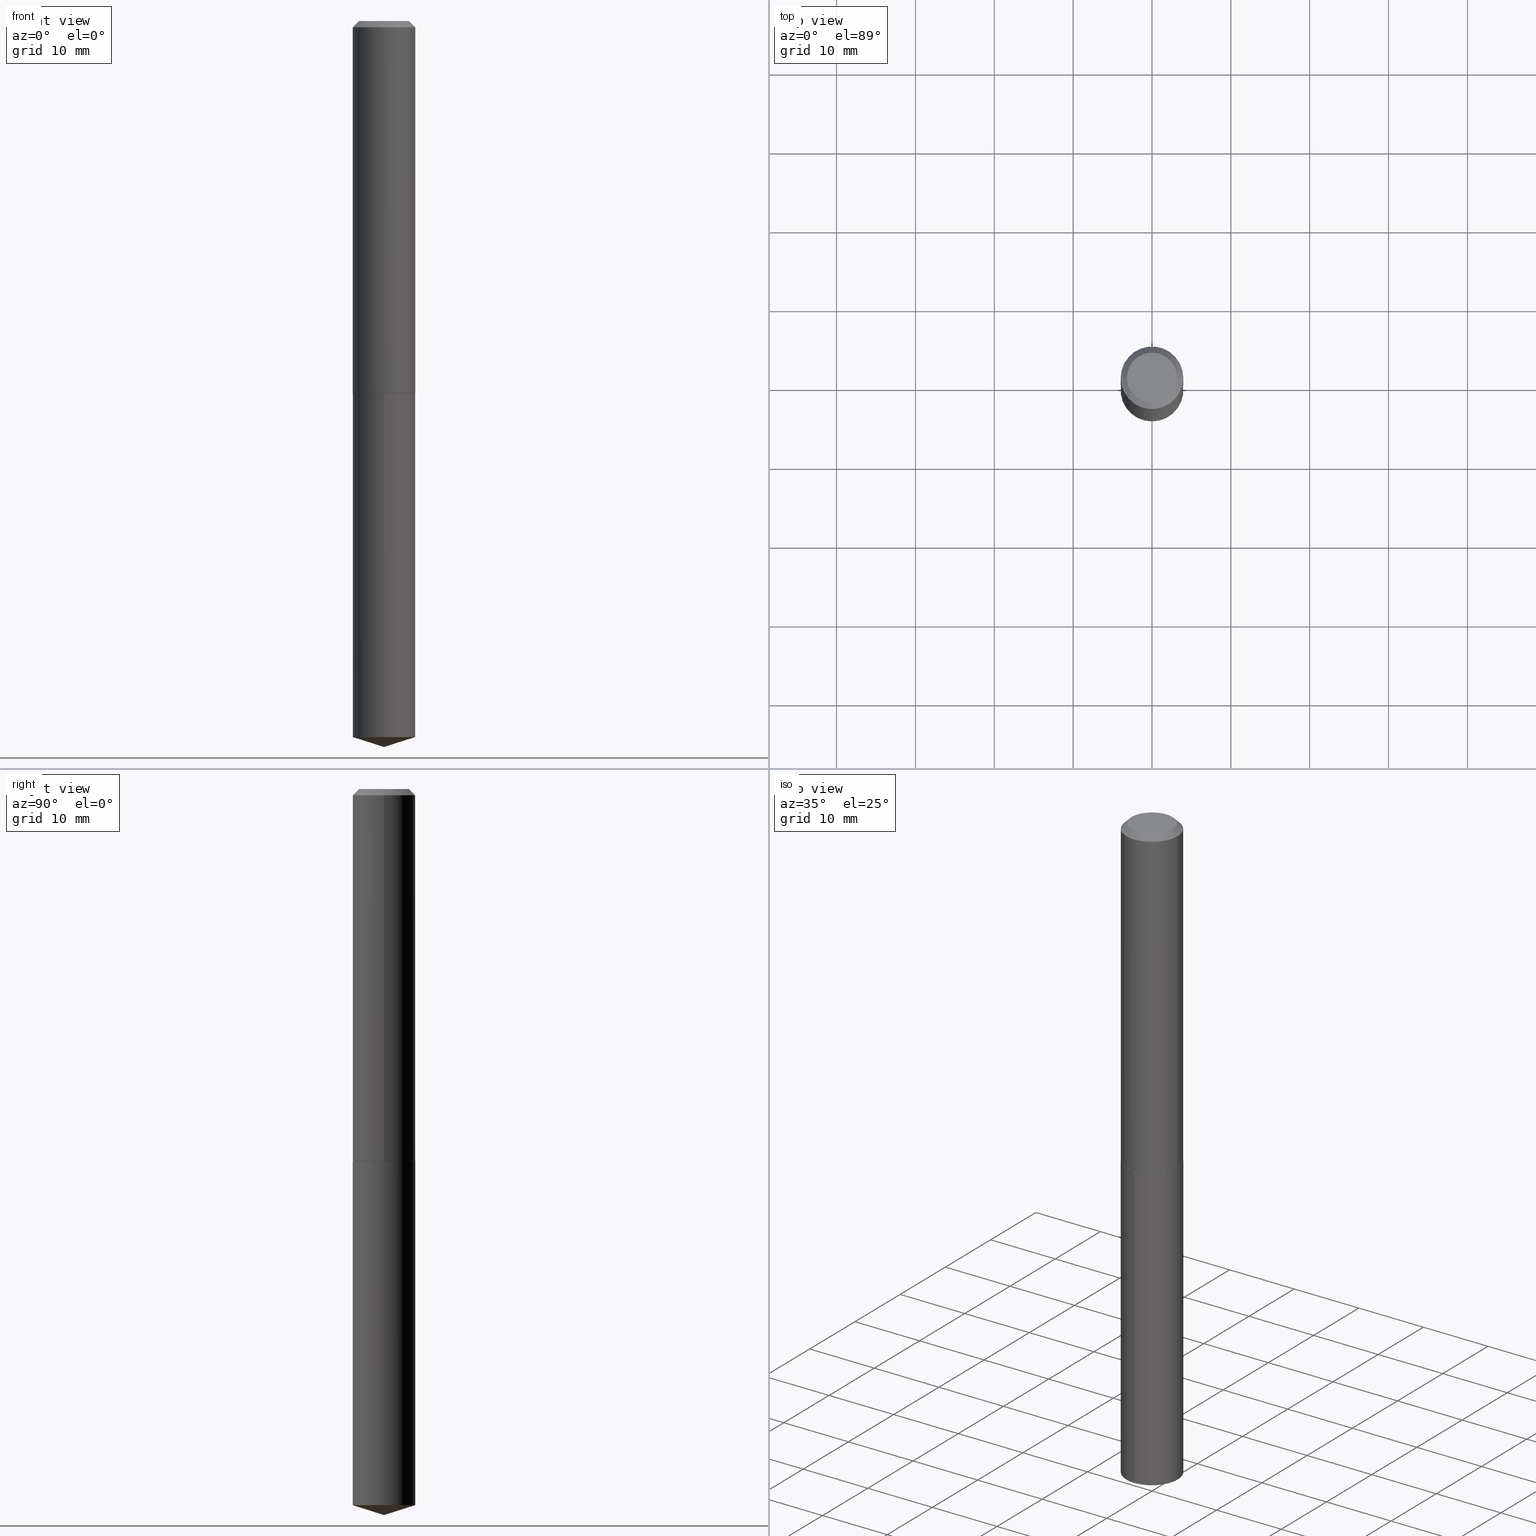
[diagram: canonical four-view strip — front | top / right | iso, engineering-drawing reading convention]
A machine part, canonical four-view strip (front | top / right | iso — engineering-drawing reading convention). The complete STEP part file that produces these views, byte-faithful:
ISO-10303-21;
HEADER;
FILE_DESCRIPTION (( 'STEP AP203' ),
    '1' );
FILE_NAME ('51517.STEP',
    '2024-04-22T18:46:47',
    ( '' ),
    ( '' ),
    'SwSTEP 2.0',
    'SolidWorks 2023',
    '' );
FILE_SCHEMA (( 'CONFIG_CONTROL_DESIGN' ));
ENDSEC;

DATA;
#1 = FACE_OUTER_BOUND ( 'NONE', #309, .T. ) ;
#2 = ORIENTED_EDGE ( 'NONE', *, *, #217, .F. ) ;
#3 = VERTEX_POINT ( 'NONE', #53 ) ;
#4 = DIRECTION ( 'NONE',  ( -2.438279987139125498E-29, 3.501776136879202935E-15, 1.000000000000000000 ) ) ;
#5 = DIRECTION ( 'NONE',  ( -2.445468806185136877E-29, 3.491481338843145188E-15, 1.000000000000000000 ) ) ;
#6 = AXIS2_PLACEMENT_3D ( 'NONE', #27, #328, #242 ) ;
#7 = PLANE ( 'NONE',  #166 ) ;
#8 = DIRECTION ( 'NONE',  ( 1.000000000000000000, -6.982962677686268288E-15, 0.000000000000000000 ) ) ;
#9 = PERSON_AND_ORGANIZATION ( #11, #129 ) ;
#10 = DIRECTION ( 'NONE',  ( -2.445468806185136597E-29, 3.491481338843145583E-15, 1.000000000000000000 ) ) ;
#11 = PERSON ( 'UNSPECIFIED', 'UNSPECIFIED', 'UNSPECIFIED', ('UNSPECIFIED'), ('UNSPECIFIED'), ('UNSPECIFIED') ) ;
#12 = APPLICATION_PROTOCOL_DEFINITION ( 'international standard', 'config_control_design', 1994, #123 ) ;
#13 = EDGE_LOOP ( 'NONE', ( #212, #224, #315, #236 ) ) ;
#14 = CALENDAR_DATE ( 2024, 22, 4 ) ;
#15 = DATE_AND_TIME ( #14, #23 ) ;
#16 = EDGE_CURVE ( 'NONE', #222, #3, #209, .T. ) ;
#17 = ORIENTED_EDGE ( 'NONE', *, *, #172, .T. ) ;
#18 = AXIS2_PLACEMENT_3D ( 'NONE', #388, #179, #333 ) ;
#19 = PERSON_AND_ORGANIZATION ( #11, #129 ) ;
#20 = DIRECTION ( 'NONE',  ( -2.438279987139125779E-29, 3.501776136879202935E-15, 1.000000000000000000 ) ) ;
#21 = DIRECTION ( 'NONE',  ( 2.438088387897960049E-29, -3.491481338843145188E-15, -1.000000000000000000 ) ) ;
#22 = ADVANCED_FACE ( 'NONE', ( #153 ), #46, .T. ) ;
#23 = LOCAL_TIME ( 14, 46, 47.00000000000000000, #223 ) ;
#24 = LINE ( 'NONE', #156, #139 ) ;
#25 = DIRECTION ( 'NONE',  ( -2.438279987139125779E-29, 3.501776136879202935E-15, 1.000000000000000000 ) ) ;
#26 = VERTEX_POINT ( 'NONE', #180 ) ;
#27 = CARTESIAN_POINT ( 'NONE',  ( 4.547104698220642215E-29, -6.492060401444944640E-15, -1.859399999999999942 ) ) ;
#28 = CARTESIAN_POINT ( 'NONE',  ( 4.547104698220642775E-29, -6.492060401444945429E-15, -1.859400000000000164 ) ) ;
#29 = DIRECTION ( 'NONE',  ( -6.659769872151623411E-15, -0.9537169507482254893, 0.3007057995042773935 ) ) ;
#30 = FACE_OUTER_BOUND ( 'NONE', #286, .T. ) ;
#31 = CC_DESIGN_DATE_AND_TIME_ASSIGNMENT ( #15, #137, ( #237 ) ) ;
#32 = CIRCLE ( 'NONE', #306, 0.1562500000000000000 ) ;
#33 = DATE_AND_TIME ( #203, #280 ) ;
#34 = DIRECTION ( 'NONE',  ( 6.776566513254248671E-15, 0.9537169507482275987, 0.3007057995042707876 ) ) ;
#35 = CARTESIAN_POINT ( 'NONE',  ( 1.110223024625243907E-15, 0.1562499999999875100, -3.575734564237659452 ) ) ;
#36 = APPLICATION_PROTOCOL_DEFINITION ( 'international standard', 'config_control_design', 1994, #301 ) ;
#37 = ADVANCED_FACE ( 'NONE', ( #30 ), #206, .T. ) ;
#38 = CARTESIAN_POINT ( 'NONE',  ( 7.642090019328607041E-31, -1.091087918388490883E-16, -0.03125000000000022898 ) ) ;
#39 = AXIS2_PLACEMENT_3D ( 'NONE', #157, #25, #302 ) ;
#40 = CIRCLE ( 'NONE', #263, 0.1562500000000000278 ) ;
#41 = ORIENTED_EDGE ( 'NONE', *, *, #138, .T. ) ;
#42 = CARTESIAN_POINT ( 'NONE',  ( 8.732008917436479290E-29, -1.250227982139334463E-14, -3.575734564237659008 ) ) ;
#43 = EDGE_CURVE ( 'NONE', #221, #296, #367, .T. ) ;
#44 = APPROVAL_ROLE ( '' ) ;
#45 = DIRECTION ( 'NONE',  ( -6.982962677686265133E-15, -1.000000000000000000, 3.496765431890256920E-15 ) ) ;
#46 = CONICAL_SURFACE ( 'NONE', #72, 0.1562500000000001665, 0.7853981633978922572 ) ;
#47 = PRODUCT_DEFINITION_FORMATION_WITH_SPECIFIED_SOURCE ( 'ANY', '', #81, .NOT_KNOWN. ) ;
#48 = ORIENTED_EDGE ( 'NONE', *, *, #138, .F. ) ;
#49 = UNCERTAINTY_MEASURE_WITH_UNIT (LENGTH_MEASURE( 1.000000000000000082E-05 ), #133, 'distance_accuracy_value', 'NONE');
#50 = CARTESIAN_POINT ( 'NONE',  ( 8.732008917436479290E-29, -1.250227982139334463E-14, -3.575734564237659008 ) ) ;
#51 = LINE ( 'NONE', #178, #228 ) ;
#52 = CARTESIAN_POINT ( 'NONE',  ( -1.091087918388433617E-15, -0.1562500000000064948, -1.859399999999999498 ) ) ;
#53 = CARTESIAN_POINT ( 'NONE',  ( 0.1250000000000000000, -1.019311926856046176E-15, 3.827021247342097808E-18 ) ) ;
#54 = ORIENTED_EDGE ( 'NONE', *, *, #283, .F. ) ;
#55 = VECTOR ( 'NONE', #29, 39.37007874015748854 ) ;
#56 = CARTESIAN_POINT ( 'NONE',  ( 1.110223024625201703E-15, 0.1562499999999935052, -1.859400000000000608 ) ) ;
#57 = CARTESIAN_POINT ( 'NONE',  ( -0.1562500000000000833, 1.110223024625157132E-15, -7.685836078523293962E-30 ) ) ;
#58 = EDGE_CURVE ( 'NONE', #361, #221, #332, .T. ) ;
#59 = DIRECTION ( 'NONE',  ( -2.438279987139125779E-29, 3.501776136879202935E-15, 1.000000000000000000 ) ) ;
#60 = DIRECTION ( 'NONE',  ( -2.445468806185136597E-29, 3.491481338843145583E-15, 1.000000000000000000 ) ) ;
#61 = EDGE_CURVE ( 'NONE', #342, #376, #270, .T. ) ;
#62 = DIRECTION ( 'NONE',  ( -6.982962677686266711E-15, -1.000000000000000000, 3.500519750498750186E-15 ) ) ;
#63 = ORIENTED_EDGE ( 'NONE', *, *, #61, .F. ) ;
#64 = VECTOR ( 'NONE', #4, 39.37007874015748143 ) ;
#65 = DIRECTION ( 'NONE',  ( 1.000000000000000000, -6.982962677686268288E-15, 0.000000000000000000 ) ) ;
#66 = DIRECTION ( 'NONE',  ( 0.7071067811868614328, -2.468850131085545033E-15, 0.7071067811862336017 ) ) ;
#67 = PERSON_AND_ORGANIZATION_ROLE ( 'design_owner' ) ;
#68 = ORIENTED_EDGE ( 'NONE', *, *, #114, .F. ) ;
#69 = PRODUCT_RELATED_PRODUCT_CATEGORY ( 'detail', '', ( #81 ) ) ;
#70 = DIRECTION ( 'NONE',  ( -6.982962677686266711E-15, -1.000000000000000000, 3.496765431890256131E-15 ) ) ;
#71 = MECHANICAL_CONTEXT ( 'NONE', #123, 'mechanical' ) ;
#72 = AXIS2_PLACEMENT_3D ( 'NONE', #188, #243, #365 ) ;
#73 = CC_DESIGN_APPROVAL ( #181, ( #237 ) ) ;
#74 = CARTESIAN_POINT ( 'NONE',  ( 4.547104698220642775E-29, -6.492060401444945429E-15, -1.859400000000000164 ) ) ;
#75 = SECURITY_CLASSIFICATION_LEVEL ( 'unclassified' ) ;
#76 = APPROVAL_PERSON_ORGANIZATION ( #9, #109, #379 ) ;
#77 = COORDINATED_UNIVERSAL_TIME_OFFSET ( 5, 0, .BEHIND. ) ;
#78 = DIRECTION ( 'NONE',  ( 2.445468806185136597E-29, -3.491481338843145583E-15, -1.000000000000000000 ) ) ;
#79 = EDGE_CURVE ( 'NONE', #121, #358, #334, .T. ) ;
#80 = SHAPE_DEFINITION_REPRESENTATION ( #127, #216 ) ;
#81 = PRODUCT ( '51517', '51517', '', ( #71 ) ) ;
#82 = AXIS2_PLACEMENT_3D ( 'NONE', #337, #304, #373 ) ;
#83 = FACE_OUTER_BOUND ( 'NONE', #273, .T. ) ;
#84 = CARTESIAN_POINT ( 'NONE',  ( -0.1250000000000000000, 9.274247306302067059E-16, 3.827021247329187915E-18 ) ) ;
#85 = DIRECTION ( 'NONE',  ( -2.438279987139125498E-29, 3.501776136879202935E-15, 1.000000000000000000 ) ) ;
#86 = AXIS2_PLACEMENT_3D ( 'NONE', #299, #253, #176 ) ;
#87 = CIRCLE ( 'NONE', #380, 0.1250000000000000000 ) ;
#88 = LOCAL_TIME ( 14, 46, 47.00000000000000000, #77 ) ;
#89 = CYLINDRICAL_SURFACE ( 'NONE', #110, 0.1562500000000000833 ) ;
#90 = CYLINDRICAL_SURFACE ( 'NONE', #269, 0.1562500000000000000 ) ;
#91 = ADVANCED_FACE ( 'NONE', ( #161 ), #90, .T. ) ;
#92 = LINE ( 'NONE', #125, #55 ) ;
#93 = DIRECTION ( 'NONE',  ( -2.445468806185136597E-29, 3.491481338843145583E-15, 1.000000000000000000 ) ) ;
#94 = ORIENTED_EDGE ( 'NONE', *, *, #217, .T. ) ;
#95 = APPROVAL_ROLE ( '' ) ;
#96 = CARTESIAN_POINT ( 'NONE',  ( 8.865733157343894640E-29, -1.265565420125062349E-14, -3.625000000000000444 ) ) ;
#97 = CARTESIAN_POINT ( 'NONE',  ( -0.1562500000000001665, -5.380091636150366596E-15, -1.858900000000000219 ) ) ;
#98 = EDGE_CURVE ( 'NONE', #163, #121, #289, .T. ) ;
#99 = ORIENTED_EDGE ( 'NONE', *, *, #310, .F. ) ;
#100 = ORIENTED_EDGE ( 'NONE', *, *, #61, .T. ) ;
#101 =( NAMED_UNIT ( * ) SI_UNIT ( $, .STERADIAN. ) SOLID_ANGLE_UNIT ( ) );
#102 = ADVANCED_FACE ( 'NONE', ( #389 ), #320, .T. ) ;
#103 = DIRECTION ( 'NONE',  ( -2.438279987139125779E-29, 3.501776136879202935E-15, 1.000000000000000000 ) ) ;
#104 = VECTOR ( 'NONE', #85, 39.37007874015748143 ) ;
#105 = AXIS2_PLACEMENT_3D ( 'NONE', #116, #196, #65 ) ;
#106 = DIRECTION ( 'NONE',  ( -1.000000000000000000, 6.982962677686266711E-15, 0.000000000000000000 ) ) ;
#107 = ORIENTED_EDGE ( 'NONE', *, *, #58, .T. ) ;
#108 = APPROVAL_STATUS ( 'not_yet_approved' ) ;
#109 = APPROVAL ( #257, 'UNSPECIFIED' ) ;
#110 = AXIS2_PLACEMENT_3D ( 'NONE', #119, #303, #234 ) ;
#111 = CC_DESIGN_SECURITY_CLASSIFICATION ( #385, ( #47 ) ) ;
#112 = MANIFOLD_SOLID_BREP ( 'Body-Move/Copy2[1]', #225 ) ;
#113 = DIMENSIONAL_EXPONENTS ( 1.000000000000000000, 0.000000000000000000, 0.000000000000000000, 0.000000000000000000, 0.000000000000000000, 0.000000000000000000, 0.000000000000000000 ) ;
#114 = EDGE_CURVE ( 'NONE', #3, #222, #87, .T. ) ;
#115 = EDGE_LOOP ( 'NONE', ( #219, #107, #255, #2 ) ) ;
#116 = CARTESIAN_POINT ( 'NONE',  ( 7.642090019328607041E-31, -1.091087918388490883E-16, -0.03125000000000022898 ) ) ;
#117 = AXIS2_PLACEMENT_3D ( 'NONE', #240, #277, #8 ) ;
#118 = ORIENTED_EDGE ( 'NONE', *, *, #264, .T. ) ;
#119 = CARTESIAN_POINT ( 'NONE',  ( 0.000000000000000000, 0.000000000000000000, 0.000000000000000000 ) ) ;
#120 = CARTESIAN_POINT ( 'NONE',  ( 4.547104698220642775E-29, -6.492060401444945429E-15, -1.859400000000000164 ) ) ;
#121 = VERTEX_POINT ( 'NONE', #250 ) ;
#122 = DIRECTION ( 'NONE',  ( 0.7071067811865450192, -7.319954787623246579E-15, -0.7071067811865500152 ) ) ;
#123 = APPLICATION_CONTEXT ( 'configuration controlled 3d designs of mechanical parts and assemblies' ) ;
#124 = ORIENTED_EDGE ( 'NONE', *, *, #264, .F. ) ;
#125 = CARTESIAN_POINT ( 'NONE',  ( 8.838764953379332664E-29, -1.269393849618711340E-14, -3.625000000000000444 ) ) ;
#126 = DIRECTION ( 'NONE',  ( -6.982962677686265133E-15, -1.000000000000000000, 3.496765431890256920E-15 ) ) ;
#127 = PRODUCT_DEFINITION_SHAPE ( 'NONE', 'NONE',  #237 ) ;
#128 = CIRCLE ( 'NONE', #279, 0.1562500000000000000 ) ;
#129 = ORGANIZATION ( 'UNSPECIFIED', 'UNSPECIFIED', '' ) ;
#130 = CARTESIAN_POINT ( 'NONE',  ( -0.1562500000000000000, -2.189488701682029578E-15, -0.03125000000000022898 ) ) ;
#131 = CARTESIAN_POINT ( 'NONE',  ( -9.358861080966655793E-47, 1.336197326842805586E-32, 3.827021247335482624E-18 ) ) ;
#132 = DIRECTION ( 'NONE',  ( 1.000000000000000000, -6.982962677686266711E-15, 4.876242311950517246E-29 ) ) ;
#133 =( CONVERSION_BASED_UNIT ( 'INCH', #307 ) LENGTH_UNIT ( ) NAMED_UNIT ( #113 ) );
#134 = ORIENTED_EDGE ( 'NONE', *, *, #310, .T. ) ;
#135 = CIRCLE ( 'NONE', #6, 0.1557500000000001106 ) ;
#136 = DIRECTION ( 'NONE',  ( 0.000000000000000000, 0.000000000000000000, 1.000000000000000000 ) ) ;
#137 = DATE_TIME_ROLE ( 'creation_date' ) ;
#138 = EDGE_CURVE ( 'NONE', #323, #26, #32, .T. ) ;
#139 = VECTOR ( 'NONE', #241, 39.37007874015748143 ) ;
#140 = LOCAL_TIME ( 14, 46, 47.00000000000000000, #170 ) ;
#141 = EDGE_CURVE ( 'NONE', #361, #358, #359, .T. ) ;
#142 = APPROVAL_DATE_TIME ( #145, #169 ) ;
#143 = CC_DESIGN_PERSON_AND_ORGANIZATION_ASSIGNMENT ( #160, #67, ( #81 ) ) ;
#144 = DIRECTION ( 'NONE',  ( -6.982962677686265133E-15, -1.000000000000000000, 3.496765431890256920E-15 ) ) ;
#145 = DATE_AND_TIME ( #322, #140 ) ;
#146 = CC_DESIGN_PERSON_AND_ORGANIZATION_ASSIGNMENT ( #198, #287, ( #237 ) ) ;
#147 = CARTESIAN_POINT ( 'NONE',  ( 4.547104698220642775E-29, -6.492060401444945429E-15, -1.859400000000000164 ) ) ;
#148 = LINE ( 'NONE', #274, #341 ) ;
#149 = ORIENTED_EDGE ( 'NONE', *, *, #371, .F. ) ;
#150 = ORIENTED_EDGE ( 'NONE', *, *, #43, .T. ) ;
#151 = ORIENTED_EDGE ( 'NONE', *, *, #114, .T. ) ;
#152 = CARTESIAN_POINT ( 'NONE',  ( 4.547104698220642775E-29, -6.492060401444945429E-15, -1.859400000000000164 ) ) ;
#153 = FACE_OUTER_BOUND ( 'NONE', #194, .T. ) ;
#154 = EDGE_LOOP ( 'NONE', ( #99, #390, #370, #150 ) ) ;
#155 = EDGE_CURVE ( 'NONE', #376, #345, #174, .T. ) ;
#156 = CARTESIAN_POINT ( 'NONE',  ( -0.1562500000000001665, -5.380091636150366596E-15, -1.858900000000000219 ) ) ;
#157 = CARTESIAN_POINT ( 'NONE',  ( -8.714314324070406930E-28, 1.251904058906198385E-13, 35.74507874015748143 ) ) ;
#158 = FACE_OUTER_BOUND ( 'NONE', #344, .T. ) ;
#159 = CARTESIAN_POINT ( 'NONE',  ( 7.642090019328607041E-31, -1.091087918388490883E-16, -0.03125000000000022898 ) ) ;
#160 = PERSON_AND_ORGANIZATION ( #11, #129 ) ;
#161 = FACE_OUTER_BOUND ( 'NONE', #288, .T. ) ;
#162 = ORIENTED_EDGE ( 'NONE', *, *, #335, .T. ) ;
#163 = VERTEX_POINT ( 'NONE', #171 ) ;
#164 = DIRECTION ( 'NONE',  ( -1.000000000000000000, 6.982962677686266711E-15, 0.000000000000000000 ) ) ;
#165 =( NAMED_UNIT ( * ) PLANE_ANGLE_UNIT ( ) SI_UNIT ( $, .RADIAN. ) );
#166 = AXIS2_PLACEMENT_3D ( 'NONE', #147, #266, #387 ) ;
#167 = CALENDAR_DATE ( 2024, 22, 4 ) ;
#168 = VECTOR ( 'NONE', #66, 39.37007874015748143 ) ;
#169 = APPROVAL ( #108, 'UNSPECIFIED' ) ;
#170 = COORDINATED_UNIVERSAL_TIME_OFFSET ( 5, 0, .BEHIND. ) ;
#171 = CARTESIAN_POINT ( 'NONE',  ( -0.1557500000000001106, -5.382740863324477797E-15, -1.859399999999999942 ) ) ;
#172 = EDGE_CURVE ( 'NONE', #26, #323, #128, .T. ) ;
#173 = DIRECTION ( 'NONE',  ( -0.7071067811865450192, 2.468850131082230634E-15, -0.7071067811865500152 ) ) ;
#174 = CIRCLE ( 'NONE', #298, 0.1562500000000000278 ) ;
#175 = APPROVAL_PERSON_ORGANIZATION ( #284, #181, #95 ) ;
#176 = DIRECTION ( 'NONE',  ( 1.000000000000000000, -6.982962677686268288E-15, 0.000000000000000000 ) ) ;
#177 = ORIENTED_EDGE ( 'NONE', *, *, #213, .F. ) ;
#178 = CARTESIAN_POINT ( 'NONE',  ( 0.1562500000000000833, -1.091087918388479765E-15, 7.619026212181153180E-30 ) ) ;
#179 = DIRECTION ( 'NONE',  ( -2.445468806185136597E-29, 3.491481338843145583E-15, 1.000000000000000000 ) ) ;
#180 = CARTESIAN_POINT ( 'NONE',  ( -1.091087918388433617E-15, -0.1562500000000064948, -1.859399999999999498 ) ) ;
#181 = APPROVAL ( #201, 'UNSPECIFIED' ) ;
#182 = CARTESIAN_POINT ( 'NONE',  ( 0.1562500000000000000, -1.200196710227328471E-15, -0.03125000000000022898 ) ) ;
#183 = CARTESIAN_POINT ( 'NONE',  ( 0.1562500000000001665, -7.581402579164005466E-15, -1.858900000000000219 ) ) ;
#184 = ADVANCED_FACE ( 'NONE', ( #355 ), #353, .T. ) ;
#185 = DIRECTION ( 'NONE',  ( -2.445468806185136877E-29, 3.491481338843145188E-15, 1.000000000000000000 ) ) ;
#186 = ORIENTED_EDGE ( 'NONE', *, *, #213, .T. ) ;
#187 = CARTESIAN_POINT ( 'NONE',  ( 4.547104698220642215E-29, -6.492060401444944640E-15, -1.859399999999999942 ) ) ;
#188 = CARTESIAN_POINT ( 'NONE',  ( 4.545881963817551095E-29, -6.490314660775524714E-15, -1.858900000000000219 ) ) ;
#189 = EDGE_CURVE ( 'NONE', #222, #221, #207, .T. ) ;
#190 = AXIS2_PLACEMENT_3D ( 'NONE', #319, #78, #106 ) ;
#191 = CIRCLE ( 'NONE', #105, 0.1562500000000000000 ) ;
#192 = FACE_OUTER_BOUND ( 'NONE', #318, .T. ) ;
#193 = ORIENTED_EDGE ( 'NONE', *, *, #335, .F. ) ;
#194 = EDGE_LOOP ( 'NONE', ( #186, #118, #227, #197 ) ) ;
#195 = ORIENTED_EDGE ( 'NONE', *, *, #98, .F. ) ;
#196 = DIRECTION ( 'NONE',  ( -2.445468806185136597E-29, 3.491481338843145583E-15, 1.000000000000000000 ) ) ;
#197 = ORIENTED_EDGE ( 'NONE', *, *, #79, .F. ) ;
#198 = PERSON_AND_ORGANIZATION ( #11, #129 ) ;
#199 = AXIS2_PLACEMENT_3D ( 'NONE', #281, #60, #308 ) ;
#200 = CONICAL_SURFACE ( 'NONE', #292, 0.1562500000000000000, 0.7853981633974447263 ) ;
#201 = APPROVAL_STATUS ( 'not_yet_approved' ) ;
#202 = ORIENTED_EDGE ( 'NONE', *, *, #155, .T. ) ;
#203 = CALENDAR_DATE ( 2024, 22, 4 ) ;
#204 = PERSON_AND_ORGANIZATION_ROLE ( 'classification_officer' ) ;
#205 = DATE_TIME_ROLE ( 'classification_date' ) ;
#206 = CONICAL_SURFACE ( 'NONE', #39, 124.8659371009134276, 1.265363707695887907 ) ;
#207 = LINE ( 'NONE', #324, #346 ) ;
#208 = ADVANCED_FACE ( 'NONE', ( #293 ), #364, .T. ) ;
#209 = CIRCLE ( 'NONE', #82, 0.1250000000000000000 ) ;
#210 = CARTESIAN_POINT ( 'NONE',  ( 0.000000000000000000, 0.000000000000000000, 0.000000000000000000 ) ) ;
#211 = DIRECTION ( 'NONE',  ( -2.445468806185136597E-29, 3.491481338843145583E-15, 1.000000000000000000 ) ) ;
#212 = ORIENTED_EDGE ( 'NONE', *, *, #371, .T. ) ;
#213 = EDGE_CURVE ( 'NONE', #121, #163, #135, .T. ) ;
#214 = FACE_OUTER_BOUND ( 'NONE', #384, .T. ) ;
#215 = DIRECTION ( 'NONE',  ( 1.000000000000000000, -6.982962677686268288E-15, 0.000000000000000000 ) ) ;
#216 = ADVANCED_BREP_SHAPE_REPRESENTATION ( '51517', ( #112, #251, #321 ), #229 ) ;
#217 = EDGE_CURVE ( 'NONE', #358, #296, #51, .T. ) ;
#218 = PLANE ( 'NONE',  #259 ) ;
#219 = ORIENTED_EDGE ( 'NONE', *, *, #267, .T. ) ;
#220 = DIRECTION ( 'NONE',  ( -1.000000000000000000, 6.982962677686265922E-15, -4.876176775795935793E-29 ) ) ;
#221 = VERTEX_POINT ( 'NONE', #130 ) ;
#222 = VERTEX_POINT ( 'NONE', #84 ) ;
#223 = COORDINATED_UNIVERSAL_TIME_OFFSET ( 5, 0, .BEHIND. ) ;
#224 = ORIENTED_EDGE ( 'NONE', *, *, #283, .T. ) ;
#225 = CLOSED_SHELL ( 'NONE', ( #208, #340, #37, #91, #348 ) ) ;
#226 = DATE_AND_TIME ( #167, #290 ) ;
#227 = ORIENTED_EDGE ( 'NONE', *, *, #267, .F. ) ;
#228 = VECTOR ( 'NONE', #185, 39.37007874015748143 ) ;
#229 =( GEOMETRIC_REPRESENTATION_CONTEXT ( 3 ) GLOBAL_UNCERTAINTY_ASSIGNED_CONTEXT ( ( #49 ) ) GLOBAL_UNIT_ASSIGNED_CONTEXT ( ( #133, #165, #101 ) ) REPRESENTATION_CONTEXT ( 'NONE', 'WORKASPACE' ) );
#230 = ADVANCED_FACE ( 'NONE', ( #1 ), #295, .T. ) ;
#231 = PERSON_AND_ORGANIZATION_ROLE ( 'creator' ) ;
#232 = AXIS2_PLACEMENT_3D ( 'NONE', #210, #211, #360 ) ;
#233 = ORIENTED_EDGE ( 'NONE', *, *, #155, .F. ) ;
#234 = DIRECTION ( 'NONE',  ( 1.000000000000000000, -6.982962677686266711E-15, 4.876176775795935232E-29 ) ) ;
#235 = AXIS2_PLACEMENT_3D ( 'NONE', #369, #21, #220 ) ;
#236 = ORIENTED_EDGE ( 'NONE', *, *, #265, .F. ) ;
#237 = PRODUCT_DEFINITION ( 'UNKNOWN', '', #47, #271 ) ;
#238 = CARTESIAN_POINT ( 'NONE',  ( -8.714314324070406930E-28, 1.251904058906198385E-13, 35.74507874015748143 ) ) ;
#239 = ORIENTED_EDGE ( 'NONE', *, *, #265, .T. ) ;
#240 = CARTESIAN_POINT ( 'NONE',  ( 4.545881963817551095E-29, -6.490314660775524714E-15, -1.858900000000000219 ) ) ;
#241 = DIRECTION ( 'NONE',  ( -0.7071067811868614328, 7.493145998871488542E-15, 0.7071067811862336017 ) ) ;
#242 = DIRECTION ( 'NONE',  ( 1.000000000000000000, -6.982962677686267499E-15, 0.000000000000000000 ) ) ;
#243 = DIRECTION ( 'NONE',  ( -2.445468806185136597E-29, 3.491481338843145583E-15, 1.000000000000000000 ) ) ;
#244 = AXIS2_PLACEMENT_3D ( 'NONE', #159, #93, #215 ) ;
#245 = CONICAL_SURFACE ( 'NONE', #285, 124.8659371009134276, 1.265363707695887907 ) ;
#246 = ORIENTED_EDGE ( 'NONE', *, *, #16, .T. ) ;
#247 = CARTESIAN_POINT ( 'NONE',  ( -1.091087918388391610E-15, -0.1562500000000125178, -3.575734564237658564 ) ) ;
#248 = ORIENTED_EDGE ( 'NONE', *, *, #79, .T. ) ;
#249 = APPROVAL_DATE_TIME ( #33, #109 ) ;
#250 = CARTESIAN_POINT ( 'NONE',  ( 0.1557500000000001106, -7.579656838494581595E-15, -1.859399999999999942 ) ) ;
#251 = MANIFOLD_SOLID_BREP ( 'Body-Move/Copy2[2]', #254 ) ;
#252 = EDGE_LOOP ( 'NONE', ( #124, #339, #248, #326 ) ) ;
#253 = DIRECTION ( 'NONE',  ( -2.445468806185136597E-29, 3.491481338843145583E-15, 1.000000000000000000 ) ) ;
#254 = CLOSED_SHELL ( 'NONE', ( #386, #317, #22, #258, #102, #230, #184, #278 ) ) ;
#255 = ORIENTED_EDGE ( 'NONE', *, *, #356, .F. ) ;
#256 = DIRECTION ( 'NONE',  ( 1.000000000000000000, 0.000000000000000000, 0.000000000000000000 ) ) ;
#257 = APPROVAL_STATUS ( 'not_yet_approved' ) ;
#258 = ADVANCED_FACE ( 'NONE', ( #83 ), #218, .F. ) ;
#259 = AXIS2_PLACEMENT_3D ( 'NONE', #187, #368, #330 ) ;
#260 = DIRECTION ( 'NONE',  ( -2.438279987139125779E-29, 3.501776136879202935E-15, 1.000000000000000000 ) ) ;
#261 = ORIENTED_EDGE ( 'NONE', *, *, #141, .T. ) ;
#262 = VECTOR ( 'NONE', #34, 39.37007874015748854 ) ;
#263 = AXIS2_PLACEMENT_3D ( 'NONE', #42, #103, #70 ) ;
#264 = EDGE_CURVE ( 'NONE', #163, #361, #24, .T. ) ;
#265 = EDGE_CURVE ( 'NONE', #345, #26, #300, .T. ) ;
#266 = DIRECTION ( 'NONE',  ( 2.438279987139125779E-29, -3.501776136879202935E-15, -1.000000000000000000 ) ) ;
#267 = EDGE_CURVE ( 'NONE', #358, #361, #312, .T. ) ;
#268 = FACE_OUTER_BOUND ( 'NONE', #115, .T. ) ;
#269 = AXIS2_PLACEMENT_3D ( 'NONE', #28, #275, #126 ) ;
#270 = LINE ( 'NONE', #96, #262 ) ;
#271 = DESIGN_CONTEXT ( 'detailed design', #301, 'design' ) ;
#272 = LINE ( 'NONE', #56, #64 ) ;
#273 = EDGE_LOOP ( 'NONE', ( #177, #195 ) ) ;
#274 = CARTESIAN_POINT ( 'NONE',  ( 0.1562500000000000000, -1.181061603990650907E-15, -0.03125000000000022898 ) ) ;
#275 = DIRECTION ( 'NONE',  ( -2.438279987139125779E-29, 3.501776136879202935E-15, 1.000000000000000000 ) ) ;
#276 = DIRECTION ( 'NONE',  ( -2.438279987139125779E-29, 3.501776136879202935E-15, 1.000000000000000000 ) ) ;
#277 = DIRECTION ( 'NONE',  ( -2.445468806185136597E-29, 3.491481338843145583E-15, 1.000000000000000000 ) ) ;
#278 = ADVANCED_FACE ( 'NONE', ( #214 ), #297, .F. ) ;
#279 = AXIS2_PLACEMENT_3D ( 'NONE', #74, #20, #144 ) ;
#280 = LOCAL_TIME ( 14, 46, 47.00000000000000000, #349 ) ;
#281 = CARTESIAN_POINT ( 'NONE',  ( 4.547104698220642215E-29, -6.492060401444944640E-15, -1.859399999999999942 ) ) ;
#282 = EDGE_LOOP ( 'NONE', ( #17, #41 ) ) ;
#283 = EDGE_CURVE ( 'NONE', #376, #323, #272, .T. ) ;
#284 = PERSON_AND_ORGANIZATION ( #11, #129 ) ;
#285 = AXIS2_PLACEMENT_3D ( 'NONE', #238, #276, #62 ) ;
#286 = EDGE_LOOP ( 'NONE', ( #63, #162, #233 ) ) ;
#287 = PERSON_AND_ORGANIZATION_ROLE ( 'creator' ) ;
#288 = EDGE_LOOP ( 'NONE', ( #54, #202, #239, #48 ) ) ;
#289 = CIRCLE ( 'NONE', #199, 0.1557500000000001106 ) ;
#290 = LOCAL_TIME ( 14, 46, 47.00000000000000000, #314 ) ;
#291 = VECTOR ( 'NONE', #5, 39.37007874015748143 ) ;
#292 = AXIS2_PLACEMENT_3D ( 'NONE', #38, #377, #164 ) ;
#293 = FACE_OUTER_BOUND ( 'NONE', #13, .T. ) ;
#294 = CC_DESIGN_PERSON_AND_ORGANIZATION_ASSIGNMENT ( #19, #204, ( #385 ) ) ;
#295 = CYLINDRICAL_SURFACE ( 'NONE', #232, 0.1562500000000000833 ) ;
#296 = VERTEX_POINT ( 'NONE', #182 ) ;
#297 = PLANE ( 'NONE',  #235 ) ;
#298 = AXIS2_PLACEMENT_3D ( 'NONE', #50, #260, #362 ) ;
#299 = CARTESIAN_POINT ( 'NONE',  ( 4.545881963817551095E-29, -6.490314660775524714E-15, -1.858900000000000219 ) ) ;
#300 = LINE ( 'NONE', #52, #104 ) ;
#301 = APPLICATION_CONTEXT ( 'configuration controlled 3d designs of mechanical parts and assemblies' ) ;
#302 = DIRECTION ( 'NONE',  ( -6.982962677686266711E-15, -1.000000000000000000, 3.500519750498750186E-15 ) ) ;
#303 = DIRECTION ( 'NONE',  ( -2.445468806185136597E-29, 3.491481338843145583E-15, 1.000000000000000000 ) ) ;
#304 = DIRECTION ( 'NONE',  ( -2.445468806185136597E-29, 3.491481338843145583E-15, 1.000000000000000000 ) ) ;
#305 = FACE_OUTER_BOUND ( 'NONE', #282, .T. ) ;
#306 = AXIS2_PLACEMENT_3D ( 'NONE', #120, #350, #45 ) ;
#307 = LENGTH_MEASURE_WITH_UNIT ( LENGTH_MEASURE( 0.02539999999999999897 ), #374 );
#308 = DIRECTION ( 'NONE',  ( 1.000000000000000000, -6.982962677686267499E-15, 0.000000000000000000 ) ) ;
#309 = EDGE_LOOP ( 'NONE', ( #375, #261, #94, #329 ) ) ;
#310 = EDGE_CURVE ( 'NONE', #3, #296, #148, .T. ) ;
#311 = CARTESIAN_POINT ( 'NONE',  ( 0.1562500000000001665, -7.581402579164005466E-15, -1.858900000000000219 ) ) ;
#312 = CIRCLE ( 'NONE', #18, 0.1562500000000001665 ) ;
#313 = APPROVAL_PERSON_ORGANIZATION ( #357, #169, #44 ) ;
#314 = COORDINATED_UNIVERSAL_TIME_OFFSET ( 5, 0, .BEHIND. ) ;
#315 = ORIENTED_EDGE ( 'NONE', *, *, #172, .F. ) ;
#316 = CALENDAR_DATE ( 2024, 22, 4 ) ;
#317 = ADVANCED_FACE ( 'NONE', ( #268 ), #89, .T. ) ;
#318 = EDGE_LOOP ( 'NONE', ( #68, #134, #383, #378 ) ) ;
#319 = CARTESIAN_POINT ( 'NONE',  ( 7.642090019328607041E-31, -1.091087918388490883E-16, -0.03125000000000022898 ) ) ;
#320 = CONICAL_SURFACE ( 'NONE', #117, 0.1562500000000001665, 0.7853981633978922572 ) ;
#321 = AXIS2_PLACEMENT_3D ( 'NONE', #338, #136, #256 ) ;
#322 = CALENDAR_DATE ( 2024, 22, 4 ) ;
#323 = VERTEX_POINT ( 'NONE', #336 ) ;
#324 = CARTESIAN_POINT ( 'NONE',  ( -0.1562500000000000000, 9.819791265496300729E-16, -0.03125000000000022898 ) ) ;
#325 = AXIS2_PLACEMENT_3D ( 'NONE', #152, #59, #331 ) ;
#326 = ORIENTED_EDGE ( 'NONE', *, *, #141, .F. ) ;
#327 = CC_DESIGN_APPROVAL ( #169, ( #385 ) ) ;
#328 = DIRECTION ( 'NONE',  ( -2.445468806185136597E-29, 3.491481338843145583E-15, 1.000000000000000000 ) ) ;
#329 = ORIENTED_EDGE ( 'NONE', *, *, #43, .F. ) ;
#330 = DIRECTION ( 'NONE',  ( 1.000000000000000000, -6.982962677686265922E-15, 4.876176775795935793E-29 ) ) ;
#331 = DIRECTION ( 'NONE',  ( -6.982962677686265133E-15, -1.000000000000000000, 3.496765431890256920E-15 ) ) ;
#332 = LINE ( 'NONE', #57, #291 ) ;
#333 = DIRECTION ( 'NONE',  ( 1.000000000000000000, -6.982962677686268288E-15, 0.000000000000000000 ) ) ;
#334 = LINE ( 'NONE', #183, #168 ) ;
#335 = EDGE_CURVE ( 'NONE', #342, #345, #92, .T. ) ;
#336 = CARTESIAN_POINT ( 'NONE',  ( 1.110223024625243907E-15, 0.1562499999999935052, -1.859400000000000608 ) ) ;
#337 = CARTESIAN_POINT ( 'NONE',  ( -9.358861080966655793E-47, 1.336197326842805586E-32, 3.827021247335482624E-18 ) ) ;
#338 = CARTESIAN_POINT ( 'NONE',  ( 0.000000000000000000, 0.000000000000000000, 0.000000000000000000 ) ) ;
#339 = ORIENTED_EDGE ( 'NONE', *, *, #98, .T. ) ;
#340 = ADVANCED_FACE ( 'NONE', ( #158 ), #245, .T. ) ;
#341 = VECTOR ( 'NONE', #122, 39.37007874015748143 ) ;
#342 = VERTEX_POINT ( 'NONE', #363 ) ;
#343 = APPROVAL_DATE_TIME ( #226, #181 ) ;
#344 = EDGE_LOOP ( 'NONE', ( #193, #100, #149 ) ) ;
#345 = VERTEX_POINT ( 'NONE', #247 ) ;
#346 = VECTOR ( 'NONE', #173, 39.37007874015748143 ) ;
#347 = CC_DESIGN_APPROVAL ( #109, ( #47 ) ) ;
#348 = ADVANCED_FACE ( 'NONE', ( #305 ), #7, .F. ) ;
#349 = COORDINATED_UNIVERSAL_TIME_OFFSET ( 5, 0, .BEHIND. ) ;
#350 = DIRECTION ( 'NONE',  ( -2.438279987139125779E-29, 3.501776136879202935E-15, 1.000000000000000000 ) ) ;
#351 = PERSON_AND_ORGANIZATION_ROLE ( 'design_supplier' ) ;
#352 = CC_DESIGN_PERSON_AND_ORGANIZATION_ASSIGNMENT ( #382, #351, ( #47 ) ) ;
#353 = CONICAL_SURFACE ( 'NONE', #190, 0.1562500000000000000, 0.7853981633974447263 ) ;
#354 = DATE_AND_TIME ( #316, #88 ) ;
#355 = FACE_OUTER_BOUND ( 'NONE', #154, .T. ) ;
#356 = EDGE_CURVE ( 'NONE', #296, #221, #191, .T. ) ;
#357 = PERSON_AND_ORGANIZATION ( #11, #129 ) ;
#358 = VERTEX_POINT ( 'NONE', #311 ) ;
#359 = CIRCLE ( 'NONE', #86, 0.1562500000000001665 ) ;
#360 = DIRECTION ( 'NONE',  ( 1.000000000000000000, -6.982962677686266711E-15, 4.876176775795935232E-29 ) ) ;
#361 = VERTEX_POINT ( 'NONE', #97 ) ;
#362 = DIRECTION ( 'NONE',  ( -6.982962677686266711E-15, -1.000000000000000000, 3.496765431890256131E-15 ) ) ;
#363 = CARTESIAN_POINT ( 'NONE',  ( 8.838764953379332664E-29, -1.269393849618711340E-14, -3.625000000000000444 ) ) ;
#364 = CYLINDRICAL_SURFACE ( 'NONE', #325, 0.1562500000000000000 ) ;
#365 = DIRECTION ( 'NONE',  ( 1.000000000000000000, -6.982962677686268288E-15, 0.000000000000000000 ) ) ;
#366 = CC_DESIGN_DATE_AND_TIME_ASSIGNMENT ( #354, #205, ( #385 ) ) ;
#367 = CIRCLE ( 'NONE', #244, 0.1562500000000000000 ) ;
#368 = DIRECTION ( 'NONE',  ( -2.438088387897960049E-29, 3.491481338843145188E-15, 1.000000000000000000 ) ) ;
#369 = CARTESIAN_POINT ( 'NONE',  ( -4.679430540483327897E-47, 6.680986634214027929E-33, 1.913510623667741312E-18 ) ) ;
#370 = ORIENTED_EDGE ( 'NONE', *, *, #189, .T. ) ;
#371 = EDGE_CURVE ( 'NONE', #345, #376, #40, .T. ) ;
#372 = PERSON_AND_ORGANIZATION ( #11, #129 ) ;
#373 = DIRECTION ( 'NONE',  ( 1.000000000000000000, -6.982962677686266711E-15, 4.876242311950517246E-29 ) ) ;
#374 =( LENGTH_UNIT ( ) NAMED_UNIT ( * ) SI_UNIT ( $, .METRE. ) );
#375 = ORIENTED_EDGE ( 'NONE', *, *, #58, .F. ) ;
#376 = VERTEX_POINT ( 'NONE', #35 ) ;
#377 = DIRECTION ( 'NONE',  ( 2.445468806185136597E-29, -3.491481338843145583E-15, -1.000000000000000000 ) ) ;
#378 = ORIENTED_EDGE ( 'NONE', *, *, #189, .F. ) ;
#379 = APPROVAL_ROLE ( '' ) ;
#380 = AXIS2_PLACEMENT_3D ( 'NONE', #131, #10, #132 ) ;
#381 = CC_DESIGN_PERSON_AND_ORGANIZATION_ASSIGNMENT ( #372, #231, ( #47 ) ) ;
#382 = PERSON_AND_ORGANIZATION ( #11, #129 ) ;
#383 = ORIENTED_EDGE ( 'NONE', *, *, #356, .T. ) ;
#384 = EDGE_LOOP ( 'NONE', ( #246, #151 ) ) ;
#385 = SECURITY_CLASSIFICATION ( '', '', #75 ) ;
#386 = ADVANCED_FACE ( 'NONE', ( #192 ), #200, .T. ) ;
#387 = DIRECTION ( 'NONE',  ( 6.982962677686265922E-15, 1.000000000000000000, -3.501776136879202935E-15 ) ) ;
#388 = CARTESIAN_POINT ( 'NONE',  ( 4.545881963817551095E-29, -6.490314660775524714E-15, -1.858900000000000219 ) ) ;
#389 = FACE_OUTER_BOUND ( 'NONE', #252, .T. ) ;
#390 = ORIENTED_EDGE ( 'NONE', *, *, #16, .F. ) ;
ENDSEC;
END-ISO-10303-21;
